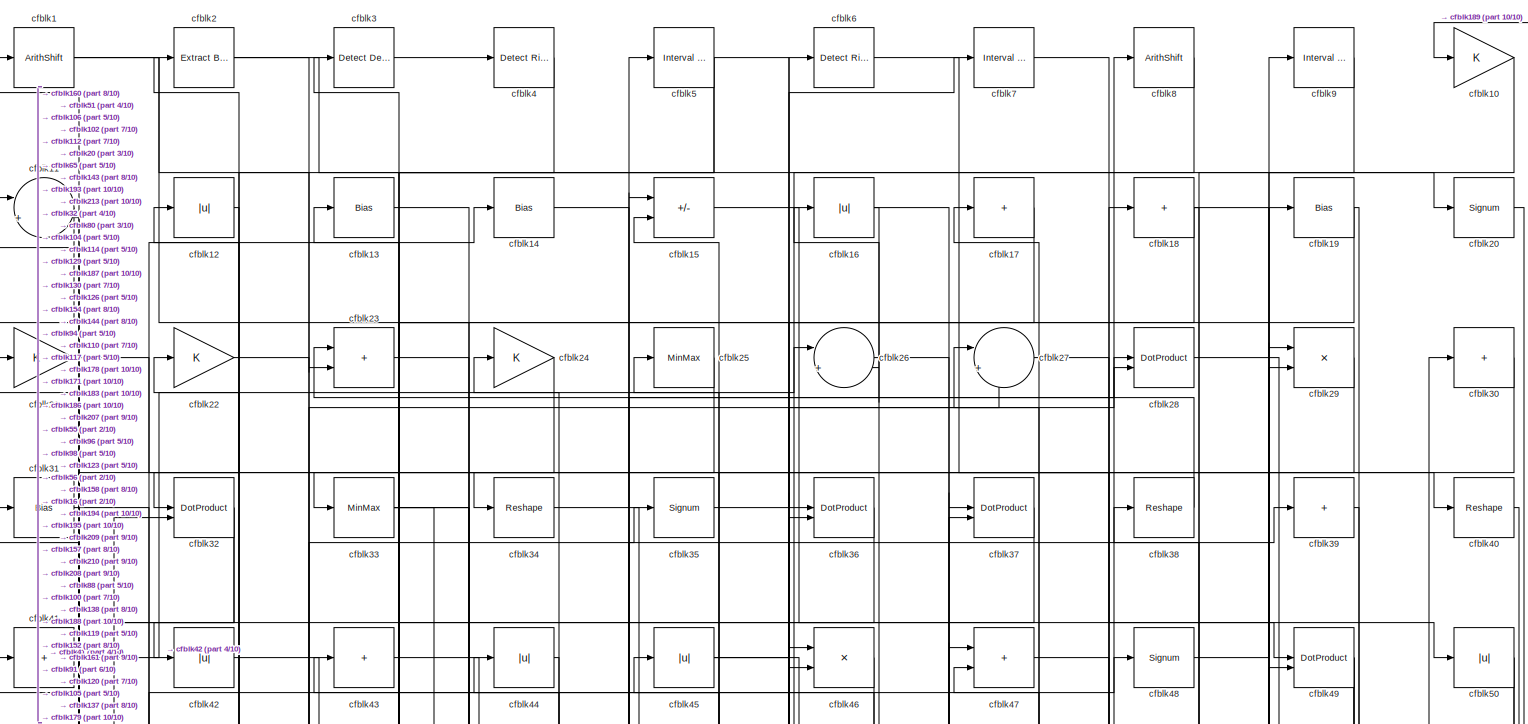
[diagram: root canvas - part 1/10, full width, top band]
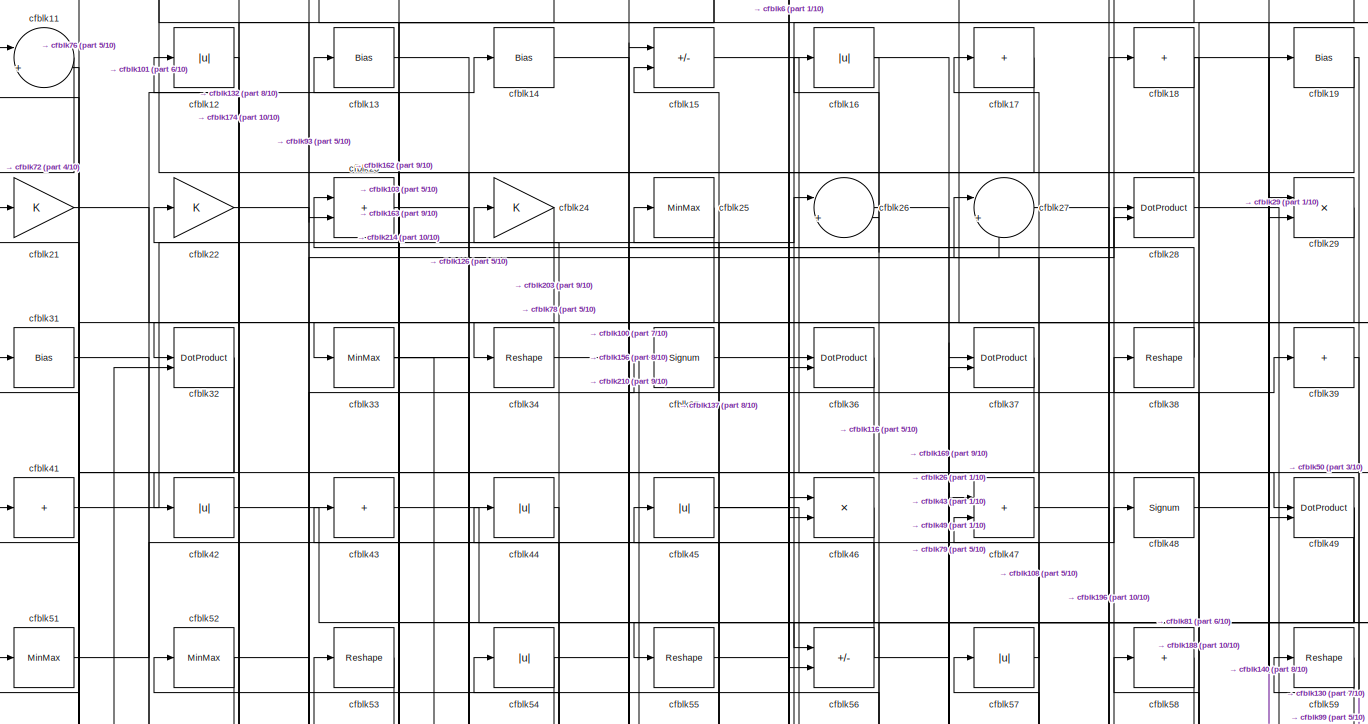
[diagram: root canvas - part 2/10, full width, top band]
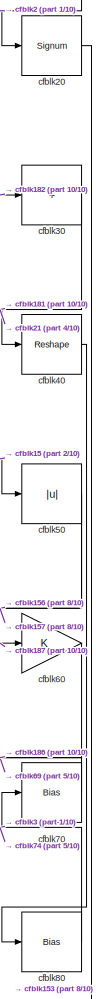
[diagram: root canvas - part 3/10, top right region]
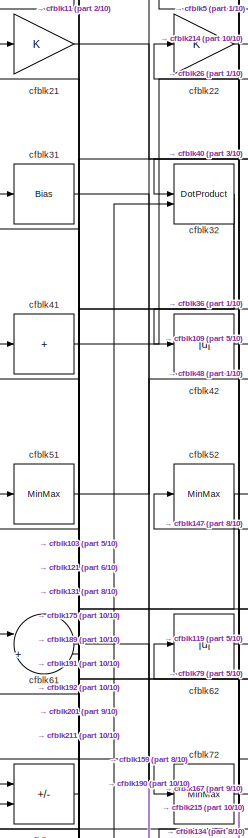
[diagram: root canvas - part 4/10, top left region]
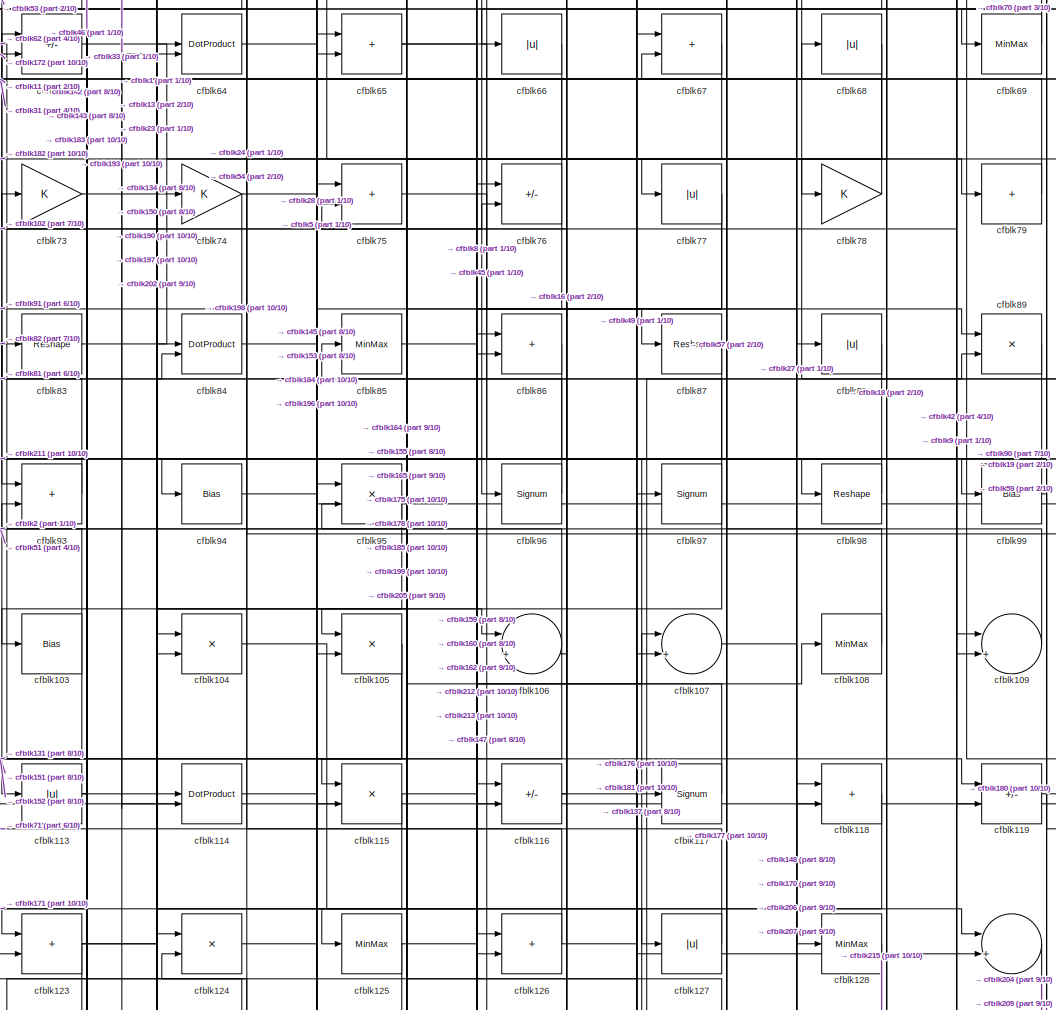
[diagram: root canvas - part 5/10, central region]
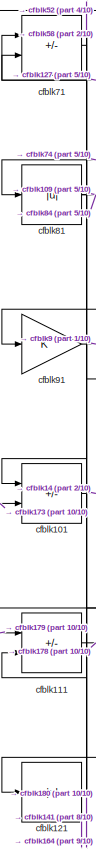
[diagram: root canvas - part 6/10, middle left region]
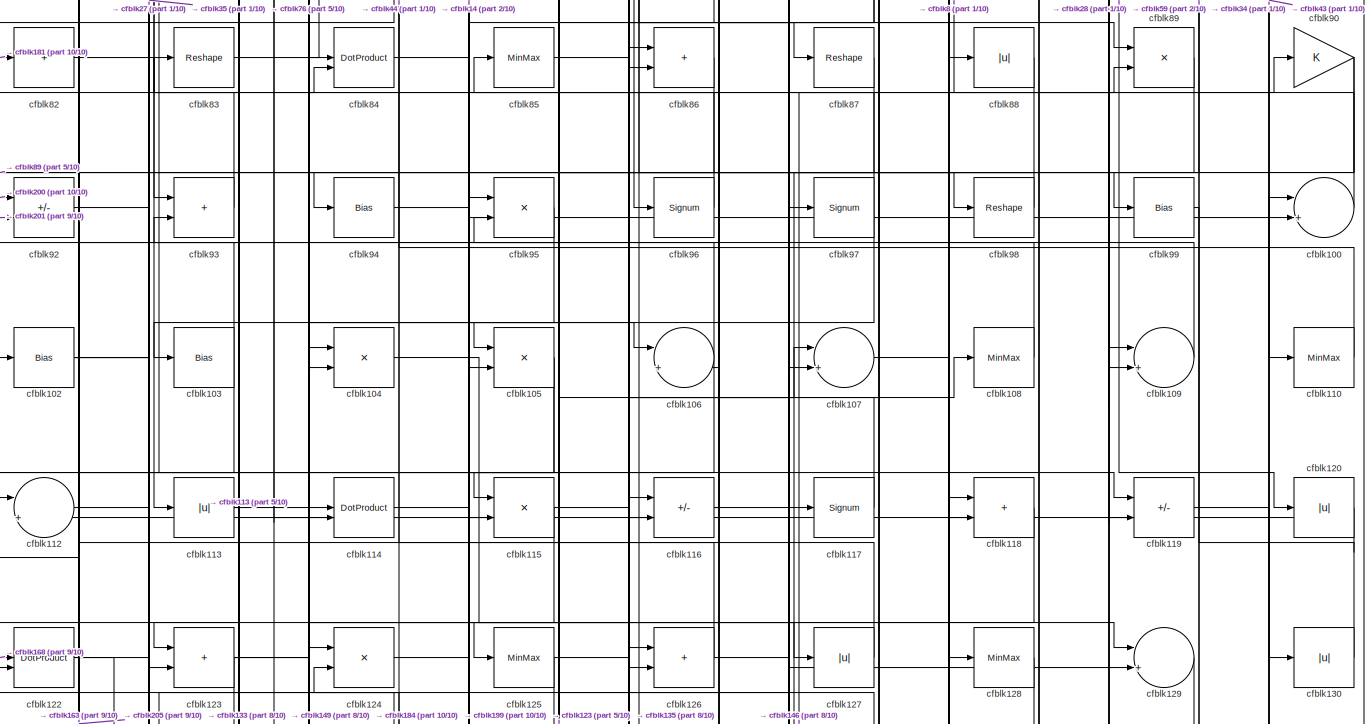
[diagram: root canvas - part 7/10, full width, middle band]
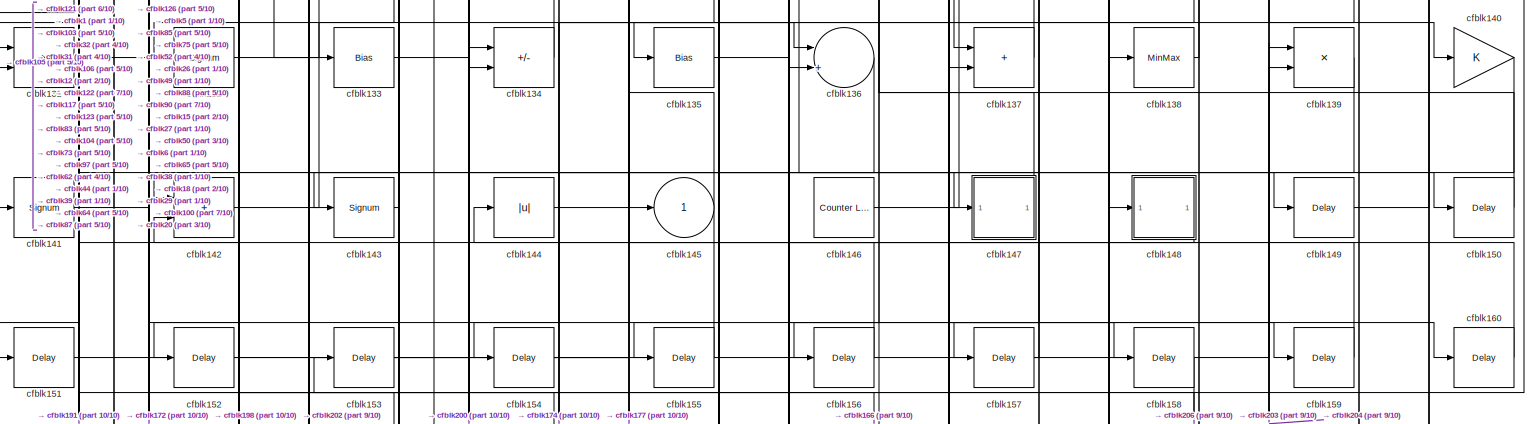
[diagram: root canvas - part 8/10, full width, middle band]
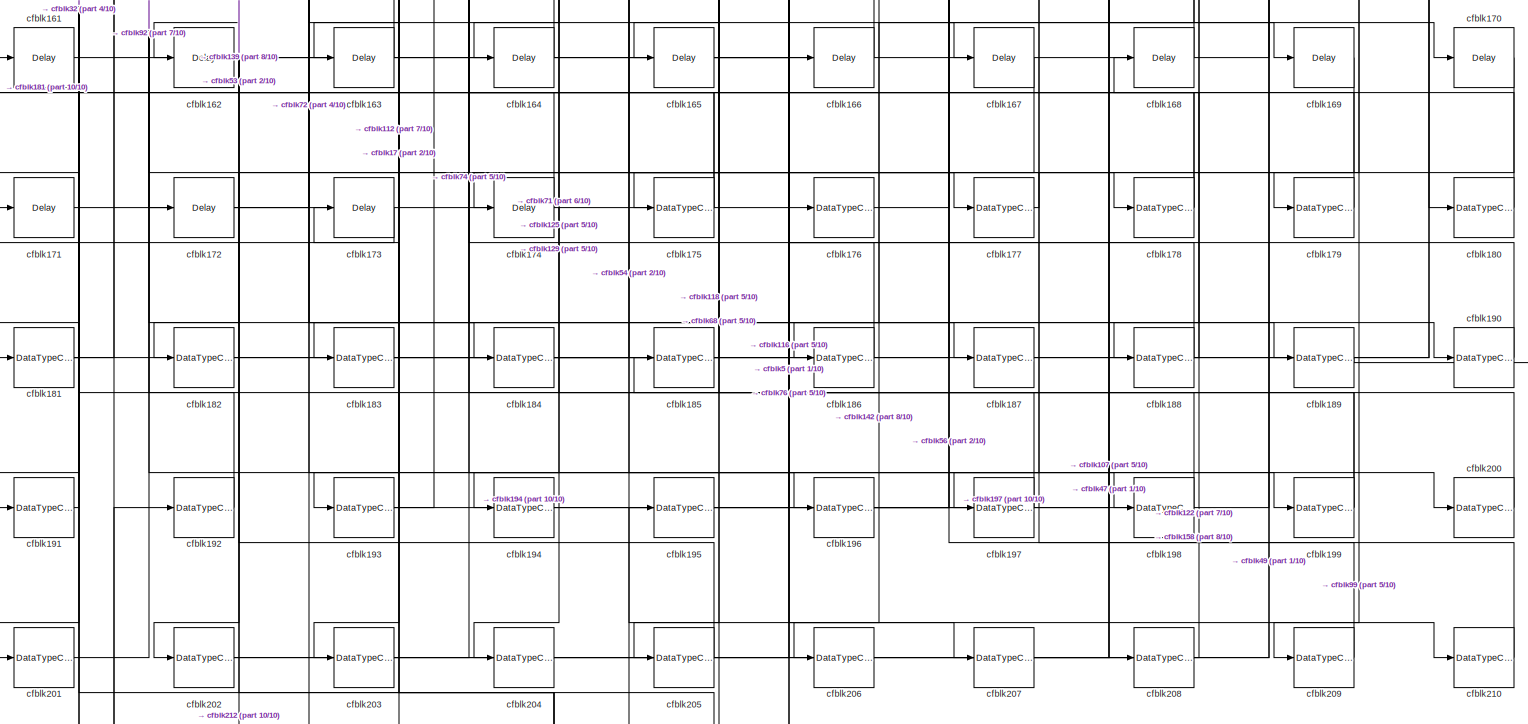
[diagram: root canvas - part 9/10, full width, bottom band]
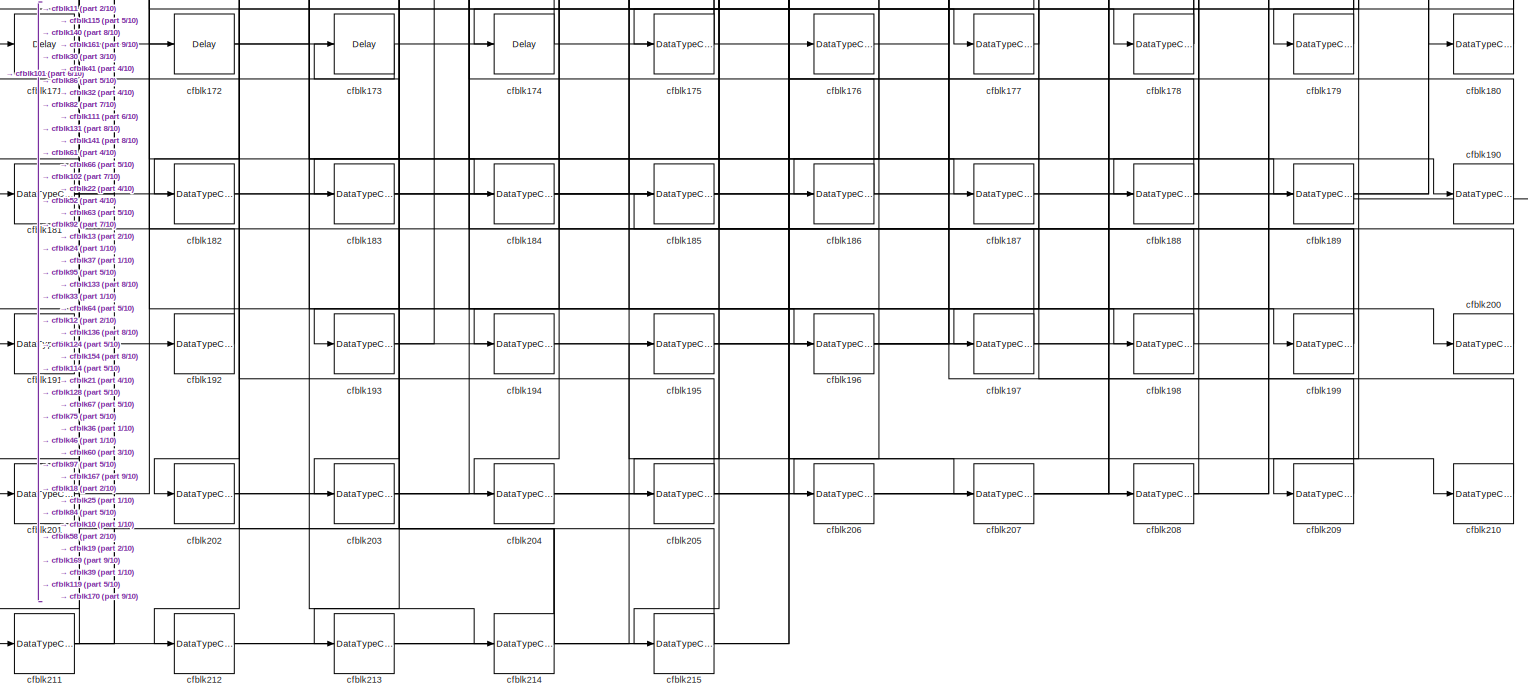
[diagram: root canvas - part 10/10, full width, bottom band]
MODEL slx_38b5a7bd5f2d
KIND model
CONFIG AbsTol = auto
CONFIG EnableMultiTasking = off
CONFIG FixedStep = auto
CONFIG MaxStep = auto
CONFIG MinStep = auto
CONFIG RelTol = 1e-3
CONFIG SampleTimeConstraint = Unconstrained
CONFIG SolverName = VariableStepAuto
CONFIG StartTime = 0.0
CONFIG StopTime = 10.0
BLOCK [ArithShift] cfblk1
  BitShiftNumber = 8
  InputPortMap = u0
BLOCK [Gain] cfblk10
BLOCK [Sum] cfblk100
  Inputs = |++
BLOCK [Sum] cfblk101
  IconShape = rectangular
  Inputs = +-
BLOCK [Bias] cfblk102
  Bias = 0.0
  SaturateOnIntegerOverflow = off
BLOCK [Bias] cfblk103
  Bias = 0.0
  SaturateOnIntegerOverflow = off
BLOCK [Product] cfblk104
  Inputs = */
  RndMeth = Zero
  SaturateOnIntegerOverflow = on
BLOCK [Product] cfblk105
  Inputs = */
  RndMeth = Zero
  SaturateOnIntegerOverflow = on
BLOCK [Sum] cfblk106
  Inputs = |++
BLOCK [Sum] cfblk107
  Inputs = |++
BLOCK [MinMax] cfblk108
BLOCK [Sum] cfblk109
  Inputs = |++
BLOCK [Sum] cfblk11
  Inputs = |++
BLOCK [MinMax] cfblk110
BLOCK [Sum] cfblk111
  IconShape = rectangular
  Inputs = +-
BLOCK [Sum] cfblk112
  Inputs = |++
BLOCK [Abs] cfblk113
  SaturateOnIntegerOverflow = off
BLOCK [DotProduct] cfblk114
  OutDataTypeStr = Inherit: Inherit via internal rule
BLOCK [Product] cfblk115
  Inputs = */
  RndMeth = Zero
  SaturateOnIntegerOverflow = on
BLOCK [Sum] cfblk116
  IconShape = rectangular
  Inputs = +-
BLOCK [Signum] cfblk117
BLOCK [Sum] cfblk118
  IconShape = rectangular
BLOCK [Sum] cfblk119
  IconShape = rectangular
  Inputs = +-
BLOCK [Abs] cfblk12
  SaturateOnIntegerOverflow = off
BLOCK [Abs] cfblk120
  SaturateOnIntegerOverflow = off
BLOCK [Abs] cfblk121
  SaturateOnIntegerOverflow = off
BLOCK [DotProduct] cfblk122
  OutDataTypeStr = Inherit: Inherit via internal rule
BLOCK [Sum] cfblk123
  IconShape = rectangular
BLOCK [Product] cfblk124
  Inputs = */
  RndMeth = Zero
  SaturateOnIntegerOverflow = on
BLOCK [MinMax] cfblk125
BLOCK [Sum] cfblk126
  IconShape = rectangular
BLOCK [Abs] cfblk127
  SaturateOnIntegerOverflow = off
BLOCK [MinMax] cfblk128
BLOCK [Sum] cfblk129
  Inputs = |++
BLOCK [Bias] cfblk13
  Bias = 0.0
  SaturateOnIntegerOverflow = off
BLOCK [Abs] cfblk130
  SaturateOnIntegerOverflow = off
BLOCK [Product] cfblk131
  Inputs = */
  RndMeth = Zero
  SaturateOnIntegerOverflow = on
BLOCK [Signum] cfblk132
BLOCK [Bias] cfblk133
  Bias = 0.0
  SaturateOnIntegerOverflow = off
BLOCK [Sum] cfblk134
  IconShape = rectangular
  Inputs = +-
BLOCK [Bias] cfblk135
  Bias = 0.0
  SaturateOnIntegerOverflow = off
BLOCK [Sum] cfblk136
  Inputs = |++
BLOCK [Sum] cfblk137
  IconShape = rectangular
BLOCK [MinMax] cfblk138
BLOCK [Product] cfblk139
  Inputs = */
  RndMeth = Zero
  SaturateOnIntegerOverflow = on
BLOCK [Bias] cfblk14
  Bias = 0.0
  SaturateOnIntegerOverflow = off
BLOCK [Gain] cfblk140
BLOCK [Signum] cfblk141
BLOCK [Sum] cfblk142
  IconShape = rectangular
BLOCK [Signum] cfblk143
BLOCK [Abs] cfblk144
  SaturateOnIntegerOverflow = off
BLOCK [Outport] cfblk145
  VectorParamsAs1DForOutWhenUnconnected = off
BLOCK [Reference] cfblk146  REF=hdlsllib/Sources/Counter
Limited
  SourceBlock = hdlsllib/Sources/Counter\nLimited
  SourceType = Counter Limited
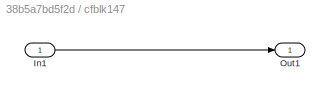
BLOCK [SubSystem] cfblk147
  LibrarySourceBlock = hdlsllib/Ports &\nSubsystems/Subsystem
BLOCK [Inport] cfblk147/In1
BLOCK [Outport] cfblk147/Out1
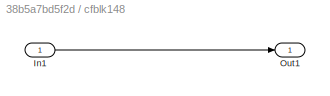
BLOCK [SubSystem] cfblk148
  LibrarySourceBlock = hdlsllib/Ports &\nSubsystems/Subsystem
BLOCK [Inport] cfblk148/In1
BLOCK [Outport] cfblk148/Out1
BLOCK [Delay] cfblk149
  InputPortMap = u0
  SampleTime = 1
BLOCK [Sum] cfblk15
  IconShape = rectangular
  Inputs = +-
BLOCK [Delay] cfblk150
  InputPortMap = u0
  SampleTime = 1
BLOCK [Delay] cfblk151
  InputPortMap = u0
  SampleTime = 1
BLOCK [Delay] cfblk152
  InputPortMap = u0
  SampleTime = 1
BLOCK [Delay] cfblk153
  InputPortMap = u0
  SampleTime = 1
BLOCK [Delay] cfblk154
  InputPortMap = u0
  SampleTime = 1
BLOCK [Delay] cfblk155
  InputPortMap = u0
  SampleTime = 1
BLOCK [Delay] cfblk156
  InputPortMap = u0
  SampleTime = 1
BLOCK [Delay] cfblk157
  InputPortMap = u0
  SampleTime = 1
BLOCK [Delay] cfblk158
  InputPortMap = u0
  SampleTime = 1
BLOCK [Delay] cfblk159
  InputPortMap = u0
  SampleTime = 1
BLOCK [Abs] cfblk16
  SaturateOnIntegerOverflow = off
BLOCK [Delay] cfblk160
  InputPortMap = u0
  SampleTime = 1
BLOCK [Delay] cfblk161
  InputPortMap = u0
  SampleTime = 1
BLOCK [Delay] cfblk162
  InputPortMap = u0
  SampleTime = 1
BLOCK [Delay] cfblk163
  InputPortMap = u0
  SampleTime = 1
BLOCK [Delay] cfblk164
  InputPortMap = u0
  SampleTime = 1
BLOCK [Delay] cfblk165
  InputPortMap = u0
  SampleTime = 1
BLOCK [Delay] cfblk166
  InputPortMap = u0
  SampleTime = 1
BLOCK [Delay] cfblk167
  InputPortMap = u0
  SampleTime = 1
BLOCK [Delay] cfblk168
  InputPortMap = u0
  SampleTime = 1
BLOCK [Delay] cfblk169
  InputPortMap = u0
  SampleTime = 1
BLOCK [Sum] cfblk17
  IconShape = rectangular
  Inputs = +
BLOCK [Delay] cfblk170
  InputPortMap = u0
  SampleTime = 1
BLOCK [Delay] cfblk171
  InputPortMap = u0
  SampleTime = 1
BLOCK [Delay] cfblk172
  InputPortMap = u0
  SampleTime = 1
BLOCK [Delay] cfblk173
  InputPortMap = u0
  SampleTime = 1
BLOCK [Delay] cfblk174
  InputPortMap = u0
  SampleTime = 1
BLOCK [DataTypeConversion] cfblk175
  RndMeth = Floor
  SaturateOnIntegerOverflow = off
BLOCK [DataTypeConversion] cfblk176
  OutDataTypeStr = uint8
  RndMeth = Floor
  SaturateOnIntegerOverflow = off
BLOCK [DataTypeConversion] cfblk177
  OutDataTypeStr = uint8
  RndMeth = Floor
  SaturateOnIntegerOverflow = off
BLOCK [DataTypeConversion] cfblk178
  RndMeth = Floor
  SaturateOnIntegerOverflow = off
BLOCK [DataTypeConversion] cfblk179
  OutDataTypeStr = uint8
  RndMeth = Floor
  SaturateOnIntegerOverflow = off
BLOCK [Sum] cfblk18
  IconShape = rectangular
  Inputs = +
BLOCK [DataTypeConversion] cfblk180
  OutDataTypeStr = uint8
  RndMeth = Floor
  SaturateOnIntegerOverflow = off
BLOCK [DataTypeConversion] cfblk181
  RndMeth = Floor
  SaturateOnIntegerOverflow = off
BLOCK [DataTypeConversion] cfblk182
  OutDataTypeStr = uint8
  RndMeth = Floor
  SaturateOnIntegerOverflow = off
BLOCK [DataTypeConversion] cfblk183
  OutDataTypeStr = uint8
  RndMeth = Floor
  SaturateOnIntegerOverflow = off
BLOCK [DataTypeConversion] cfblk184
  OutDataTypeStr = uint8
  RndMeth = Floor
  SaturateOnIntegerOverflow = off
BLOCK [DataTypeConversion] cfblk185
  OutDataTypeStr = uint8
  RndMeth = Floor
  SaturateOnIntegerOverflow = off
BLOCK [DataTypeConversion] cfblk186
  OutDataTypeStr = uint8
  RndMeth = Floor
  SaturateOnIntegerOverflow = off
BLOCK [DataTypeConversion] cfblk187
  OutDataTypeStr = uint8
  RndMeth = Floor
  SaturateOnIntegerOverflow = off
BLOCK [DataTypeConversion] cfblk188
  RndMeth = Floor
  SaturateOnIntegerOverflow = off
BLOCK [DataTypeConversion] cfblk189
  OutDataTypeStr = uint8
  RndMeth = Floor
  SaturateOnIntegerOverflow = off
BLOCK [Bias] cfblk19
  Bias = 0.0
  SaturateOnIntegerOverflow = off
BLOCK [DataTypeConversion] cfblk190
  OutDataTypeStr = uint8
  RndMeth = Floor
  SaturateOnIntegerOverflow = off
BLOCK [DataTypeConversion] cfblk191
  OutDataTypeStr = uint8
  RndMeth = Floor
  SaturateOnIntegerOverflow = off
BLOCK [DataTypeConversion] cfblk192
  OutDataTypeStr = uint8
  RndMeth = Floor
  SaturateOnIntegerOverflow = off
BLOCK [DataTypeConversion] cfblk193
  RndMeth = Floor
  SaturateOnIntegerOverflow = off
BLOCK [DataTypeConversion] cfblk194
  OutDataTypeStr = uint8
  RndMeth = Floor
  SaturateOnIntegerOverflow = off
BLOCK [DataTypeConversion] cfblk195
  OutDataTypeStr = uint8
  RndMeth = Floor
  SaturateOnIntegerOverflow = off
BLOCK [DataTypeConversion] cfblk196
  RndMeth = Floor
  SaturateOnIntegerOverflow = off
BLOCK [DataTypeConversion] cfblk197
  OutDataTypeStr = uint8
  RndMeth = Floor
  SaturateOnIntegerOverflow = off
BLOCK [DataTypeConversion] cfblk198
  OutDataTypeStr = uint8
  RndMeth = Floor
  SaturateOnIntegerOverflow = off
BLOCK [DataTypeConversion] cfblk199
  RndMeth = Floor
  SaturateOnIntegerOverflow = off
BLOCK [Reference] cfblk2  REF=simulink/Logic and Bit
Operations/Extract Bits
  LibrarySourceBlock = hdlsllib/Logic and Bit\nOperations/Extract Bits
  SourceBlock = simulink/Logic and Bit\nOperations/Extract Bits
  SourceType = Extract Bits
BLOCK [Signum] cfblk20
BLOCK [DataTypeConversion] cfblk200
  OutDataTypeStr = uint8
  RndMeth = Floor
  SaturateOnIntegerOverflow = off
BLOCK [DataTypeConversion] cfblk201
  OutDataTypeStr = uint8
  RndMeth = Floor
  SaturateOnIntegerOverflow = off
BLOCK [DataTypeConversion] cfblk202
  RndMeth = Floor
  SaturateOnIntegerOverflow = off
BLOCK [DataTypeConversion] cfblk203
  OutDataTypeStr = uint8
  RndMeth = Floor
  SaturateOnIntegerOverflow = off
BLOCK [DataTypeConversion] cfblk204
  OutDataTypeStr = uint8
  RndMeth = Floor
  SaturateOnIntegerOverflow = off
BLOCK [DataTypeConversion] cfblk205
  OutDataTypeStr = uint8
  RndMeth = Floor
  SaturateOnIntegerOverflow = off
BLOCK [DataTypeConversion] cfblk206
  OutDataTypeStr = uint8
  RndMeth = Floor
  SaturateOnIntegerOverflow = off
BLOCK [DataTypeConversion] cfblk207
  OutDataTypeStr = uint8
  RndMeth = Floor
  SaturateOnIntegerOverflow = off
BLOCK [DataTypeConversion] cfblk208
  OutDataTypeStr = uint8
  RndMeth = Floor
  SaturateOnIntegerOverflow = off
BLOCK [DataTypeConversion] cfblk209
  OutDataTypeStr = uint8
  RndMeth = Floor
  SaturateOnIntegerOverflow = off
BLOCK [Gain] cfblk21
BLOCK [DataTypeConversion] cfblk210
  OutDataTypeStr = uint8
  RndMeth = Floor
  SaturateOnIntegerOverflow = off
BLOCK [DataTypeConversion] cfblk211
  RndMeth = Floor
  SaturateOnIntegerOverflow = off
BLOCK [DataTypeConversion] cfblk212
  OutDataTypeStr = uint8
  RndMeth = Floor
  SaturateOnIntegerOverflow = off
BLOCK [DataTypeConversion] cfblk213
  OutDataTypeStr = uint8
  RndMeth = Floor
  SaturateOnIntegerOverflow = off
BLOCK [DataTypeConversion] cfblk214
  RndMeth = Floor
  SaturateOnIntegerOverflow = off
BLOCK [DataTypeConversion] cfblk215
  OutDataTypeStr = uint8
  RndMeth = Floor
  SaturateOnIntegerOverflow = off
BLOCK [Gain] cfblk22
BLOCK [Sum] cfblk23
  IconShape = rectangular
BLOCK [Gain] cfblk24
BLOCK [MinMax] cfblk25
BLOCK [Sum] cfblk26
  Inputs = |++
BLOCK [Sum] cfblk27
  Inputs = |++
BLOCK [DotProduct] cfblk28
  OutDataTypeStr = Inherit: Inherit via internal rule
BLOCK [Product] cfblk29
  Inputs = */
  RndMeth = Zero
  SaturateOnIntegerOverflow = on
BLOCK [Reference] cfblk3  REF=simulink/Logic and Bit
Operations/Detect
Decrease
  LibrarySourceBlock = hdlsllib/Logic and Bit\nOperations/Detect\nDecrease
  SourceBlock = simulink/Logic and Bit\nOperations/Detect\nDecrease
  SourceType = Detect Decrease
BLOCK [Sum] cfblk30
  IconShape = rectangular
  Inputs = +
BLOCK [Bias] cfblk31
  Bias = 0.0
  SaturateOnIntegerOverflow = off
BLOCK [DotProduct] cfblk32
  OutDataTypeStr = Inherit: Inherit via internal rule
BLOCK [MinMax] cfblk33
BLOCK [Reshape] cfblk34
BLOCK [Signum] cfblk35
BLOCK [DotProduct] cfblk36
  OutDataTypeStr = Inherit: Inherit via internal rule
BLOCK [DotProduct] cfblk37
  OutDataTypeStr = Inherit: Inherit via internal rule
BLOCK [Reshape] cfblk38
BLOCK [Sum] cfblk39
  IconShape = rectangular
  Inputs = +
BLOCK [Reference] cfblk4  REF=hdlsllib/Logic and Bit
Operations/Detect Rise
Positive
  SourceBlock = hdlsllib/Logic and Bit\nOperations/Detect Rise\nPositive
  SourceType = Detect Rise Positive
BLOCK [Reshape] cfblk40
BLOCK [Sum] cfblk41
  IconShape = rectangular
  Inputs = +
BLOCK [Abs] cfblk42
  SaturateOnIntegerOverflow = off
BLOCK [Sum] cfblk43
  IconShape = rectangular
  Inputs = +
BLOCK [Abs] cfblk44
  SaturateOnIntegerOverflow = off
BLOCK [Abs] cfblk45
  SaturateOnIntegerOverflow = off
BLOCK [Product] cfblk46
  Inputs = */
  RndMeth = Zero
  SaturateOnIntegerOverflow = on
BLOCK [Sum] cfblk47
  IconShape = rectangular
BLOCK [Signum] cfblk48
BLOCK [DotProduct] cfblk49
  OutDataTypeStr = Inherit: Inherit via internal rule
BLOCK [Reference] cfblk5  REF=hdlsllib/Logic and Bit
Operations/Interval Test
  SourceBlock = hdlsllib/Logic and Bit\nOperations/Interval Test
  SourceType = Interval Test
BLOCK [Abs] cfblk50
  SaturateOnIntegerOverflow = off
BLOCK [MinMax] cfblk51
BLOCK [MinMax] cfblk52
BLOCK [Reshape] cfblk53
BLOCK [Abs] cfblk54
  SaturateOnIntegerOverflow = off
BLOCK [Reshape] cfblk55
BLOCK [Sum] cfblk56
  IconShape = rectangular
  Inputs = +-
BLOCK [Abs] cfblk57
  SaturateOnIntegerOverflow = off
BLOCK [Sum] cfblk58
  IconShape = rectangular
  Inputs = +
BLOCK [Reshape] cfblk59
BLOCK [Reference] cfblk6  REF=hdlsllib/Logic and Bit
Operations/Detect Rise
Nonnegative
  SourceBlock = hdlsllib/Logic and Bit\nOperations/Detect Rise\nNonnegative
  SourceType = Detect Rise Nonnegative
BLOCK [Gain] cfblk60
BLOCK [Sum] cfblk61
  Inputs = |++
BLOCK [Abs] cfblk62
  SaturateOnIntegerOverflow = off
BLOCK [Sum] cfblk63
  IconShape = rectangular
  Inputs = +-
BLOCK [DotProduct] cfblk64
  OutDataTypeStr = Inherit: Inherit via internal rule
BLOCK [Sum] cfblk65
  IconShape = rectangular
BLOCK [Abs] cfblk66
  SaturateOnIntegerOverflow = off
BLOCK [Sum] cfblk67
  IconShape = rectangular
BLOCK [Abs] cfblk68
  SaturateOnIntegerOverflow = off
BLOCK [MinMax] cfblk69
BLOCK [Reference] cfblk7  REF=hdlsllib/Logic and Bit
Operations/Interval Test
  SourceBlock = hdlsllib/Logic and Bit\nOperations/Interval Test
  SourceType = Interval Test
BLOCK [Bias] cfblk70
  Bias = 0.0
  SaturateOnIntegerOverflow = off
BLOCK [Sum] cfblk71
  IconShape = rectangular
  Inputs = +-
BLOCK [MinMax] cfblk72
BLOCK [Gain] cfblk73
BLOCK [Gain] cfblk74
BLOCK [Sum] cfblk75
  IconShape = rectangular
BLOCK [Sum] cfblk76
  IconShape = rectangular
  Inputs = +-
BLOCK [Abs] cfblk77
  SaturateOnIntegerOverflow = off
BLOCK [Gain] cfblk78
BLOCK [Sum] cfblk79
  IconShape = rectangular
  Inputs = +
BLOCK [ArithShift] cfblk8
  BitShiftNumber = 8
  InputPortMap = u0
BLOCK [Bias] cfblk80
  Bias = 0.0
  SaturateOnIntegerOverflow = off
BLOCK [Abs] cfblk81
  SaturateOnIntegerOverflow = off
BLOCK [Sum] cfblk82
  IconShape = rectangular
  Inputs = +
BLOCK [Reshape] cfblk83
BLOCK [DotProduct] cfblk84
  OutDataTypeStr = Inherit: Inherit via internal rule
BLOCK [MinMax] cfblk85
BLOCK [Sum] cfblk86
  IconShape = rectangular
BLOCK [Reshape] cfblk87
BLOCK [Abs] cfblk88
  SaturateOnIntegerOverflow = off
BLOCK [Product] cfblk89
  Inputs = */
  RndMeth = Zero
  SaturateOnIntegerOverflow = on
BLOCK [Reference] cfblk9  REF=hdlsllib/Logic and Bit
Operations/Interval Test
  SourceBlock = hdlsllib/Logic and Bit\nOperations/Interval Test
  SourceType = Interval Test
BLOCK [Gain] cfblk90
BLOCK [Gain] cfblk91
BLOCK [Sum] cfblk92
  IconShape = rectangular
  Inputs = +-
BLOCK [Sum] cfblk93
  IconShape = rectangular
BLOCK [Bias] cfblk94
  Bias = 0.0
  SaturateOnIntegerOverflow = off
BLOCK [Product] cfblk95
  Inputs = */
  RndMeth = Zero
  SaturateOnIntegerOverflow = on
BLOCK [Signum] cfblk96
BLOCK [Signum] cfblk97
BLOCK [Reshape] cfblk98
BLOCK [Bias] cfblk99
  Bias = 0.0
  SaturateOnIntegerOverflow = off
LINE cfblk100:1 -> cfblk8:1
LINE cfblk101:1 -> cfblk14:1
NET cfblk102:1 -> cfblk184:1, cfblk27:2, cfblk76:2
NET cfblk103:1 -> cfblk151:1, cfblk51:1
LINE cfblk104:1 -> cfblk127:1
NET cfblk105:1 -> cfblk115:2, cfblk131:2
NET cfblk106:1 -> cfblk152:1, cfblk2:1
LINE cfblk107:1 -> cfblk170:1
LINE cfblk108:1 -> cfblk57:1
LINE cfblk109:1 -> cfblk73:1
LINE cfblk10:1 -> cfblk188:1
LINE cfblk110:1 -> cfblk44:1
LINE cfblk111:1 -> cfblk178:1
LINE cfblk112:1 -> cfblk35:1
NET cfblk113:1 -> cfblk68:1, cfblk93:2
LINE cfblk114:1 -> cfblk5:1
NET cfblk115:1 -> cfblk107:1, cfblk171:1
NET cfblk116:1 -> cfblk129:2, cfblk16:1
LINE cfblk117:1 -> cfblk45:1
LINE cfblk118:1 -> cfblk205:1
LINE cfblk119:1 -> cfblk180:1
LINE cfblk11:1 -> cfblk72:1
LINE cfblk120:1 -> cfblk112:2
LINE cfblk121:1 -> cfblk141:1
NET cfblk122:1 -> cfblk133:1, cfblk149:1
NET cfblk123:1 -> cfblk142:1, cfblk150:1, cfblk89:2
LINE cfblk124:1 -> cfblk196:1
NET cfblk125:1 -> cfblk108:1, cfblk164:1
NET cfblk126:1 -> cfblk107:2, cfblk24:1
LINE cfblk127:1 -> cfblk71:1
LINE cfblk128:1 -> cfblk215:1
LINE cfblk129:1 -> cfblk204:1
LINE cfblk12:1 -> cfblk132:1
LINE cfblk130:1 -> cfblk59:1
LINE cfblk131:1 -> cfblk198:1
LINE cfblk132:1 -> cfblk136:1
LINE cfblk133:1 -> cfblk200:1
LINE cfblk134:1 -> cfblk62:1
LINE cfblk135:1 -> cfblk136:2
LINE cfblk136:1 -> cfblk174:1
LINE cfblk137:1 -> cfblk15:2
LINE cfblk138:1 -> cfblk38:1
LINE cfblk139:1 -> cfblk202:1
LINE cfblk13:1 -> cfblk126:2
LINE cfblk140:1 -> cfblk191:1
LINE cfblk141:1 -> cfblk172:1
LINE cfblk142:1 -> cfblk117:1
LINE cfblk143:1 -> cfblk83:1
LINE cfblk144:1 -> cfblk39:1
LINE cfblk146:1 -> cfblk90:1
LINE cfblk147/In1:1 -> cfblk147/Out1:1
LINE cfblk147:1 -> cfblk52:1
LINE cfblk148/In1:1 -> cfblk148/Out1:1
LINE cfblk148:1 -> cfblk144:1
LINE cfblk149:1 -> cfblk100:1
LINE cfblk14:1 -> cfblk100:2
LINE cfblk150:1 -> cfblk75:1
LINE cfblk151:1 -> cfblk104:2
LINE cfblk152:1 -> cfblk29:1
LINE cfblk153:1 -> cfblk105:2
LINE cfblk154:1 -> cfblk177:1
LINE cfblk155:1 -> cfblk65:1
LINE cfblk156:1 -> cfblk15:1
LINE cfblk157:1 -> cfblk27:1
LINE cfblk158:1 -> cfblk206:1
LINE cfblk159:1 -> cfblk126:1
LINE cfblk15:1 -> cfblk50:1
LINE cfblk160:1 -> cfblk1:1
LINE cfblk161:1 -> cfblk49:2
LINE cfblk162:1 -> cfblk116:1
LINE cfblk163:1 -> cfblk112:1
LINE cfblk164:1 -> cfblk71:2
LINE cfblk165:1 -> cfblk76:1
LINE cfblk166:1 -> cfblk142:2
LINE cfblk167:1 -> cfblk212:1
LINE cfblk168:1 -> cfblk122:1
LINE cfblk169:1 -> cfblk197:1
NET cfblk16:1 -> cfblk26:2, cfblk79:1
LINE cfblk170:1 -> cfblk194:1
LINE cfblk171:1 -> cfblk46:2
LINE cfblk172:1 -> cfblk63:2
LINE cfblk173:1 -> cfblk101:2
LINE cfblk174:1 -> cfblk12:1
NET cfblk175:1 -> cfblk114:1, cfblk21:1
LINE cfblk176:1 -> cfblk67:1
LINE cfblk177:1 -> cfblk67:2
NET cfblk178:1 -> cfblk25:1, cfblk84:1
LINE cfblk179:1 -> cfblk111:1
LINE cfblk17:1 -> cfblk163:1
LINE cfblk180:1 -> cfblk111:2
NET cfblk181:1 -> cfblk161:1, cfblk82:1, cfblk97:1
LINE cfblk182:1 -> cfblk30:1
LINE cfblk183:1 -> cfblk36:2
LINE cfblk184:1 -> cfblk95:1
LINE cfblk185:1 -> cfblk95:2
LINE cfblk186:1 -> cfblk36:1
LINE cfblk187:1 -> cfblk60:1
NET cfblk188:1 -> cfblk46:1, cfblk58:1
LINE cfblk189:1 -> cfblk10:1
NET cfblk18:1 -> cfblk140:1, cfblk56:2, cfblk78:1
LINE cfblk190:1 -> cfblk64:1
LINE cfblk191:1 -> cfblk61:1
LINE cfblk192:1 -> cfblk61:2
NET cfblk193:1 -> cfblk176:1, cfblk64:2
LINE cfblk194:1 -> cfblk37:1
LINE cfblk195:1 -> cfblk37:2
NET cfblk196:1 -> cfblk18:1, cfblk19:1
LINE cfblk197:1 -> cfblk124:1
LINE cfblk198:1 -> cfblk124:2
NET cfblk199:1 -> cfblk185:1, cfblk75:2
NET cfblk19:1 -> cfblk103:1, cfblk99:1
NET cfblk1:1 -> cfblk104:1, cfblk23:2
LINE cfblk200:1 -> cfblk92:1
LINE cfblk201:1 -> cfblk92:2
NET cfblk202:1 -> cfblk166:1, cfblk74:1
LINE cfblk203:1 -> cfblk139:1
LINE cfblk204:1 -> cfblk139:2
LINE cfblk205:1 -> cfblk122:2
LINE cfblk206:1 -> cfblk118:1
LINE cfblk207:1 -> cfblk118:2
LINE cfblk208:1 -> cfblk168:1
LINE cfblk209:1 -> cfblk47:1
LINE cfblk20:1 -> cfblk153:1
LINE cfblk210:1 -> cfblk47:2
NET cfblk211:1 -> cfblk192:1, cfblk195:1, cfblk32:2, cfblk41:1
LINE cfblk212:1 -> cfblk86:1
LINE cfblk213:1 -> cfblk86:2
NET cfblk214:1 -> cfblk11:2, cfblk13:1, cfblk173:1
LINE cfblk215:1 -> cfblk22:1
LINE cfblk21:1 -> cfblk40:1
LINE cfblk22:1 -> cfblk214:1
LINE cfblk23:1 -> cfblk106:1
LINE cfblk24:1 -> cfblk213:1
LINE cfblk25:1 -> cfblk34:1
LINE cfblk26:1 -> cfblk158:1
LINE cfblk27:1 -> cfblk88:1
LINE cfblk28:1 -> cfblk120:1
LINE cfblk29:1 -> cfblk55:1
NET cfblk2:1 -> cfblk20:1, cfblk65:2
LINE cfblk30:1 -> cfblk181:1
LINE cfblk31:1 -> cfblk159:1
NET cfblk32:1 -> cfblk131:1, cfblk201:1
NET cfblk33:1 -> cfblk114:2, cfblk129:1, cfblk187:1
LINE cfblk34:1 -> cfblk110:1
LINE cfblk35:1 -> cfblk7:1
LINE cfblk36:1 -> cfblk42:1
LINE cfblk37:1 -> cfblk193:1
LINE cfblk38:1 -> cfblk23:1
LINE cfblk39:1 -> cfblk179:1
LINE cfblk3:1 -> cfblk4:1
LINE cfblk40:1 -> cfblk80:1
LINE cfblk41:1 -> cfblk26:1
LINE cfblk42:1 -> cfblk109:1
LINE cfblk43:1 -> cfblk130:1
LINE cfblk44:1 -> cfblk154:1
NET cfblk45:1 -> cfblk28:2, cfblk98:1
LINE cfblk46:1 -> cfblk123:1
LINE cfblk47:1 -> cfblk208:1
LINE cfblk48:1 -> cfblk29:2
NET cfblk49:1 -> cfblk105:1, cfblk137:2, cfblk56:1
LINE cfblk4:1 -> cfblk33:1
NET cfblk50:1 -> cfblk156:1, cfblk157:1
LINE cfblk51:1 -> cfblk48:1
NET cfblk52:1 -> cfblk121:1, cfblk189:1
LINE cfblk53:1 -> cfblk162:1
NET cfblk54:1 -> cfblk203:1, cfblk210:1
LINE cfblk55:1 -> cfblk6:1
NET cfblk56:1 -> cfblk169:1, cfblk43:1
LINE cfblk57:1 -> cfblk17:1
LINE cfblk58:1 -> cfblk81:1
LINE cfblk59:1 -> cfblk93:1
NET cfblk5:1 -> cfblk143:1, cfblk207:1, cfblk32:1
LINE cfblk60:1 -> cfblk186:1
LINE cfblk61:1 -> cfblk190:1
LINE cfblk62:1 -> cfblk119:1
LINE cfblk63:1 -> cfblk128:1
LINE cfblk64:1 -> cfblk145:1
NET cfblk65:1 -> cfblk148:1, cfblk89:1
LINE cfblk66:1 -> cfblk182:1
LINE cfblk67:1 -> cfblk175:1
NET cfblk68:1 -> cfblk125:1, cfblk165:1
LINE cfblk69:1 -> cfblk66:1
LINE cfblk6:1 -> cfblk138:1
LINE cfblk70:1 -> cfblk69:1
LINE cfblk71:1 -> cfblk101:1
LINE cfblk72:1 -> cfblk167:1
LINE cfblk73:1 -> cfblk134:1
NET cfblk74:1 -> cfblk70:1, cfblk91:1
LINE cfblk75:1 -> cfblk147:1
NET cfblk76:1 -> cfblk116:2, cfblk11:1
NET cfblk77:1 -> cfblk106:2, cfblk115:1
LINE cfblk78:1 -> cfblk54:1
LINE cfblk79:1 -> cfblk31:1
LINE cfblk7:1 -> cfblk49:1
LINE cfblk80:1 -> cfblk3:1
NET cfblk81:1 -> cfblk109:2, cfblk84:2
LINE cfblk82:1 -> cfblk113:1
LINE cfblk83:1 -> cfblk77:1
LINE cfblk84:1 -> cfblk87:1
LINE cfblk85:1 -> cfblk160:1
LINE cfblk86:1 -> cfblk211:1
LINE cfblk87:1 -> cfblk155:1
LINE cfblk88:1 -> cfblk137:1
LINE cfblk89:1 -> cfblk102:1
LINE cfblk8:1 -> cfblk96:1
NET cfblk90:1 -> cfblk123:2, cfblk135:1
LINE cfblk91:1 -> cfblk9:1
LINE cfblk92:1 -> cfblk199:1
LINE cfblk93:1 -> cfblk53:1
LINE cfblk94:1 -> cfblk28:1
LINE cfblk95:1 -> cfblk183:1
LINE cfblk96:1 -> cfblk63:1
NET cfblk97:1 -> cfblk134:2, cfblk85:1
LINE cfblk98:1 -> cfblk94:1
LINE cfblk99:1 -> cfblk209:1
LINE cfblk9:1 -> cfblk119:2
note: NET lines group one-source signal fan-out (src -> all destinations, sorted); 1:1 wires keep LINE
